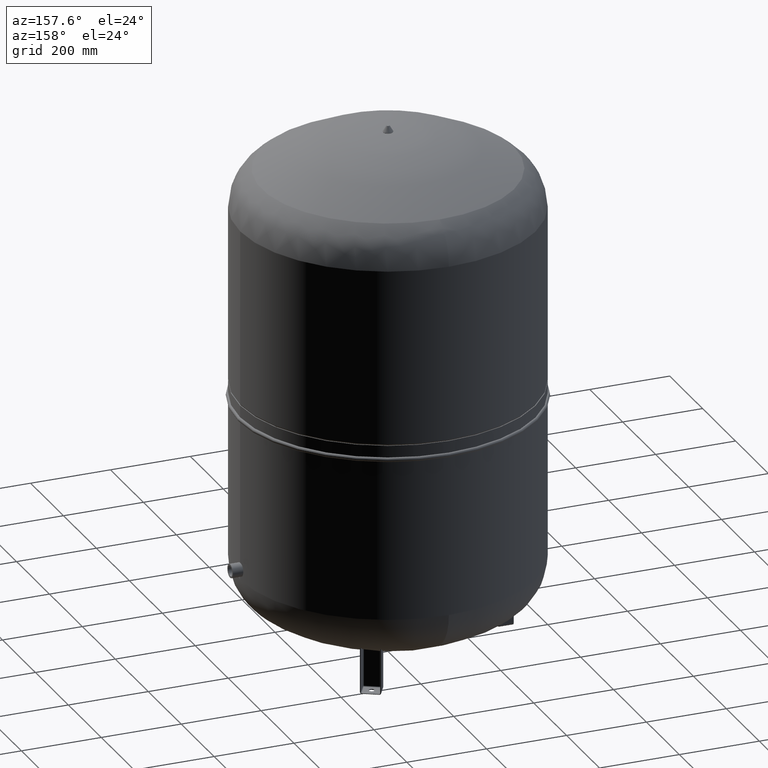
[diagram: clean part render]
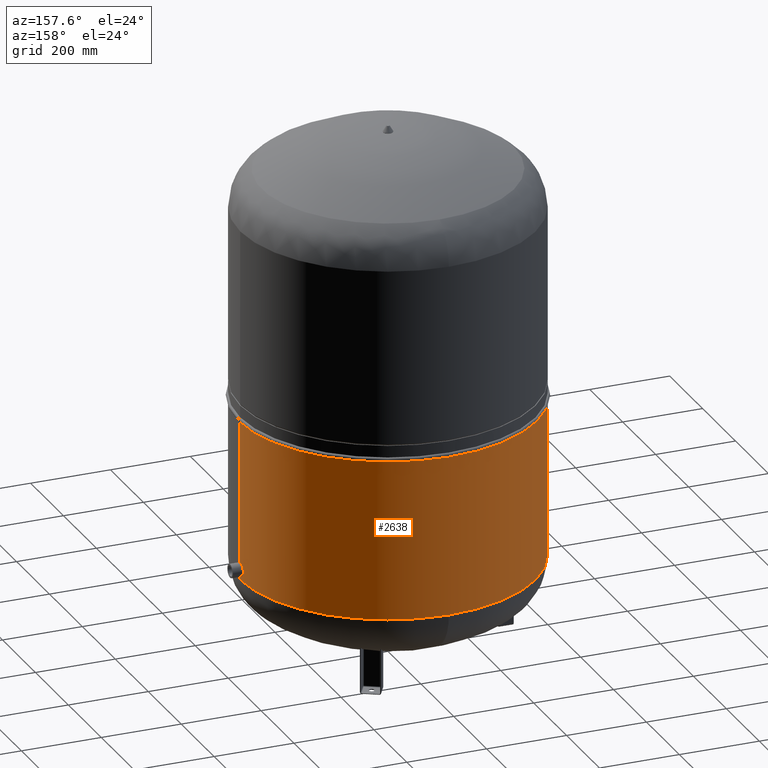
[diagram: same view with one face highlighted and labeled with its STEP entity id]
A machine part, auxiliary view. The second image highlights one B-rep face of the part: STEP entity #2638.
In plain terms, the highlighted cylindrical surface (partial cylindrical patch) has radius 370 mm, axis along (-0, 0, 1).
Its self-contained STEP definition (entity closure, byte-faithful):
#2544=CARTESIAN_POINT('',(370.000000000000060,0.0,619.549999999999950));
#2545=VERTEX_POINT('',#2544);
#2554=CARTESIAN_POINT('',(-370.0,-4.531044E-014,619.549999999999950));
#2555=VERTEX_POINT('',#2554);
#2578=CARTESIAN_POINT('',(370.0,0.0,218.999999999999890));
#2579=VERTEX_POINT('',#2578);
#2580=CARTESIAN_POINT('',(370.000000000000060,0.0,619.549999999999950));
#2581=DIRECTION('',(0.0,0.0,-1.0));
#2582=VECTOR('',#2581,400.550000000000070);
#2583=LINE('',#2580,#2582);
#2584=EDGE_CURVE('',#2545,#2579,#2583,.T.);
#2587=CARTESIAN_POINT('',(-370.0,-4.531044E-014,218.999999999999860));
#2588=VERTEX_POINT('',#2587);
#2589=CARTESIAN_POINT('',(-370.0,-4.531044E-014,619.549999999999950));
#2590=DIRECTION('',(0.0,0.0,-1.0));
#2591=VECTOR('',#2590,400.550000000000070);
#2592=LINE('',#2589,#2591);
#2593=EDGE_CURVE('',#2555,#2588,#2592,.T.);
#2610=CARTESIAN_POINT('',(1.455393E-014,0.0,218.999999999999830));
#2611=DIRECTION('',(0.0,0.0,1.0));
#2612=DIRECTION('',(1.0,0.0,0.0));
#2613=AXIS2_PLACEMENT_3D('',#2610,#2611,#2612);
#2614=CIRCLE('',#2613,370.0);
#2615=EDGE_CURVE('',#2579,#2588,#2614,.T.);
#2621=CARTESIAN_POINT('',(7.944432E-015,0.0,419.274999999999860));
#2622=DIRECTION('',(-3.300211E-017,0.0,1.0));
#2623=DIRECTION('',(1.0,0.0,0.0));
#2624=AXIS2_PLACEMENT_3D('',#2621,#2622,#2623);
#2625=CYLINDRICAL_SURFACE('',#2624,370.0);
#2626=ORIENTED_EDGE('',*,*,#2584,.T.);
#2627=ORIENTED_EDGE('',*,*,#2615,.T.);
#2628=ORIENTED_EDGE('',*,*,#2593,.F.);
#2629=CARTESIAN_POINT('',(1.334935E-015,0.0,619.549999999999950));
#2630=DIRECTION('',(0.0,0.0,1.0));
#2631=DIRECTION('',(1.0,0.0,0.0));
#2632=AXIS2_PLACEMENT_3D('',#2629,#2630,#2631);
#2633=CIRCLE('',#2632,370.000000000000060);
#2634=EDGE_CURVE('',#2545,#2555,#2633,.T.);
#2635=ORIENTED_EDGE('',*,*,#2634,.F.);
#2636=EDGE_LOOP('',(#2626,#2627,#2628,#2635));
#2637=FACE_OUTER_BOUND('',#2636,.T.);
#2638=ADVANCED_FACE('',(#2637),#2625,.T.);